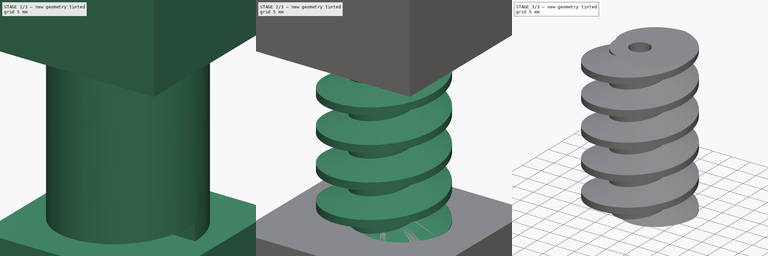
[diagram: build sequence overview — one tinted view per stage of 3, left to right]
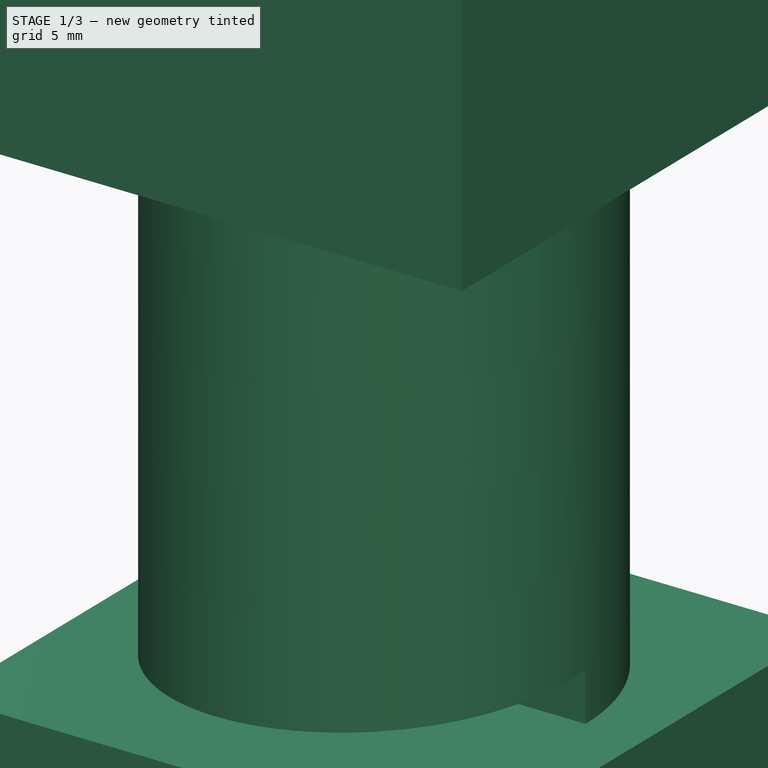
[diagram: stage 1 of 3 — iso view after this stage's code; geometry added in this stage tinted green]
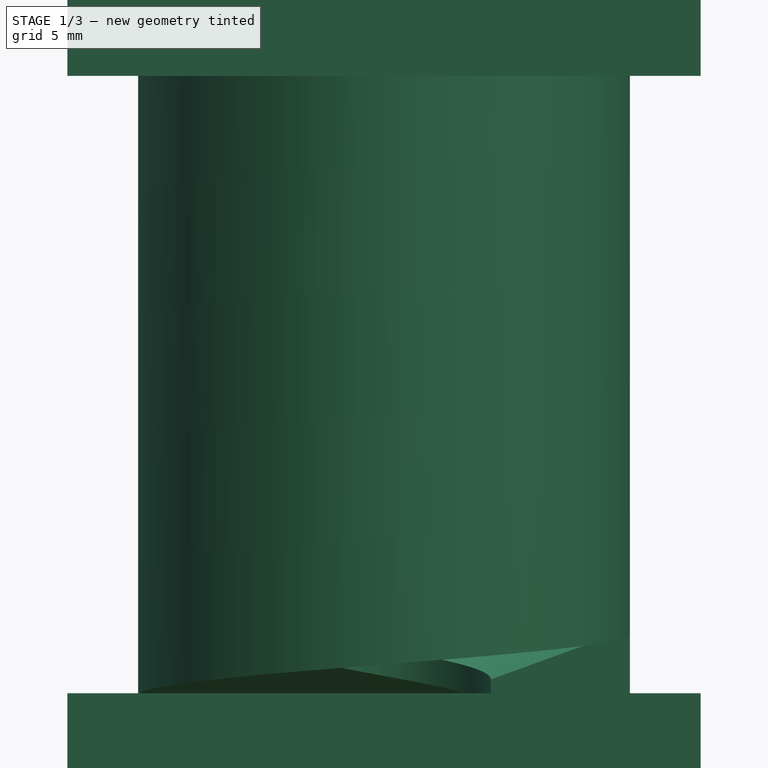
[diagram: stage 1 of 3 — front view after this stage's code; geometry added in this stage tinted green]
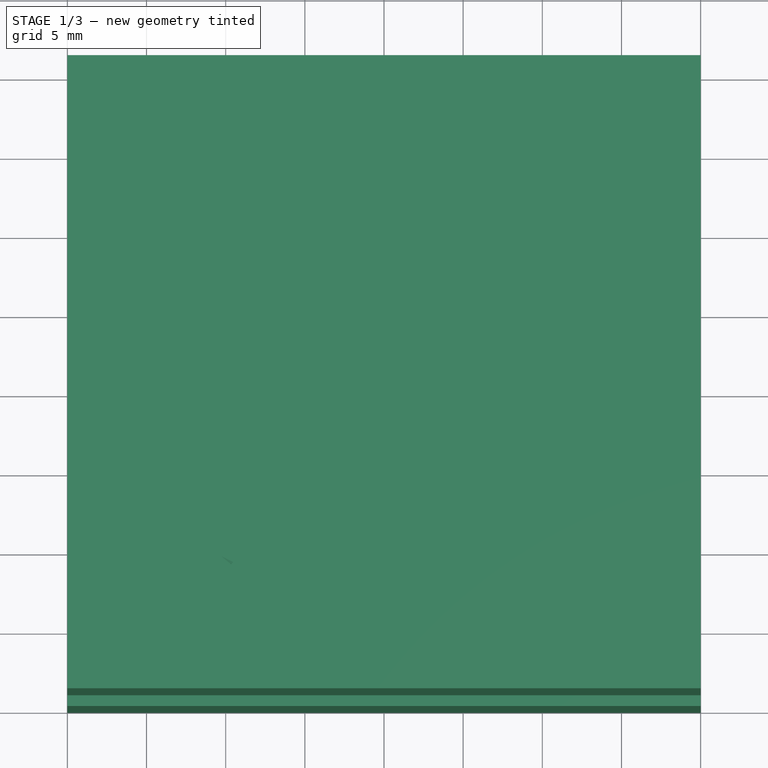
[diagram: stage 1 of 3 — top view after this stage's code; geometry added in this stage tinted green]
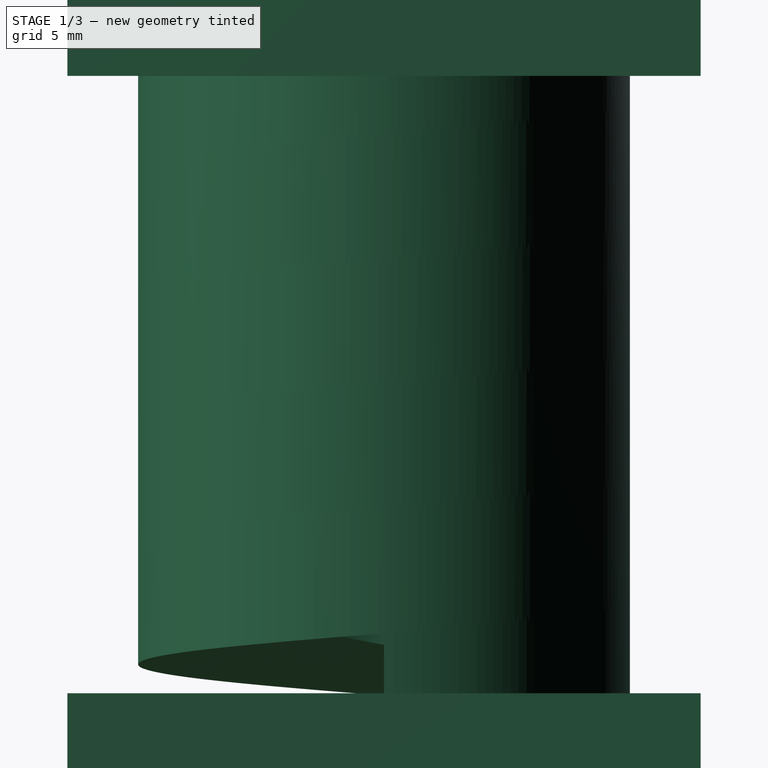
[diagram: stage 1 of 3 — right view after this stage's code; geometry added in this stage tinted green]
FCSTD DOCUMENT  (FreeCAD 0.14R$WCREV$)
Label: worm_gear
License: CC-BY 3.0
LicenseURL: http://creativecommons.org/licenses/by/3.0/
objects: Sketcher::SketchObject×4, PartDesign::Pad×2, Part::Cut×2, Part::Helix×1, Part::Sweep×1, PartDesign::Pocket×1
note: 14 computed .brp shape members not serialized (recipe doc carries the construction recipe); baked Part::Feature solids carry a one-line shape summary decoded from their .brp

FEATURE [Part::Helix] Helix  label="wormHelix"
  Angle = 0
  Height = 60
  LocalCoord = 0
  Pitch = 7.85
  Radius = 9.75
  Style = 1
FEATURE [Sketcher::SketchObject] Sketch001  label="wormCutterProfile"
  Placement = pos=(0,0,0) rot=(1,0,0;1.5708rad)
  sketch-geometry (6):
    g0: LineSegment [constr] StartX=12.25 StartY=2.87243 StartZ=0 EndX=12.25 EndY=-2.87243 EndZ=0
    g1: LineSegment StartX=6.75 StartY=-0.870589 StartZ=0 EndX=6.75 EndY=0.870589 EndZ=0
    g2: LineSegment [constr] StartX=9.75 StartY=1.9625 StartZ=0 EndX=9.75 EndY=-1.9625 EndZ=0
    g3: LineSegment StartX=6.75 StartY=0.870589 StartZ=0 EndX=15.5331 EndY=4.06739 EndZ=0
    g4: LineSegment StartX=6.75 StartY=-0.870589 StartZ=0 EndX=15.5331 EndY=-4.06739 EndZ=0
    g5: LineSegment StartX=15.5331 StartY=4.06739 StartZ=0 EndX=15.5331 EndY=-4.06739 EndZ=0
  constraints (17):
    c: Vertical(g2)
    c: DistanceX(g-1,g2) = 9.75
    c: Symmetric(g1,g1,g-1)
    c: Symmetric(g0,g0,g-1)
    c: DistanceX(g1,g2) = 3
    c: DistanceX(g2,g0) = 2.5
    c: Coincident(g3,g1)
    c: Coincident(g4,g1)
    c: PointOnObject(g0,g3)
    c: PointOnObject(g2,g3)
    c: PointOnObject(g2,g4)
    c: PointOnObject(g0,g4)
    c: Symmetric(g3,g4,g-1)
    c: Coincident(g5,g3)
    c: Coincident(g5,g4)
    c: Angle(g3,g-1) = 2.79253
    c: DistanceY(g2) = -3.925
FEATURE [Sketcher::SketchObject] Sketch002  label="heightCutter"
  Placement = pos=(0,0,0) rot=(-1,0,0;4.71239rad)
  sketch-geometry (8):
    g0: LineSegment StartX=-20 StartY=0 StartZ=0 EndX=20 EndY=0 EndZ=0
    g1: LineSegment StartX=20 StartY=0 StartZ=0 EndX=20 EndY=-25 EndZ=0
    g2: LineSegment StartX=20 StartY=-25 StartZ=0 EndX=-20 EndY=-25 EndZ=0
    g3: LineSegment StartX=-20 StartY=-25 StartZ=0 EndX=-20 EndY=0 EndZ=0
    g4: LineSegment StartX=-20 StartY=64 StartZ=0 EndX=20 EndY=64 EndZ=0
    g5: LineSegment StartX=20 StartY=64 StartZ=0 EndX=20 EndY=39 EndZ=0
    g6: LineSegment StartX=20 StartY=39 StartZ=0 EndX=-20 EndY=39 EndZ=0
    g7: LineSegment StartX=-20 StartY=39 StartZ=0 EndX=-20 EndY=64 EndZ=0
  constraints (24):
    c: Coincident(g0,g1)
    c: Coincident(g1,g2)
    c: Coincident(g2,g3)
    c: Coincident(g3,g0)
    c: Horizontal(g0)
    c: Horizontal(g2)
    c: Vertical(g1)
    c: Vertical(g3)
    c: PointOnObject(g0,g-1)
    c: Coincident(g4,g5)
    c: Coincident(g5,g6)
    c: Coincident(g6,g7)
    c: Coincident(g7,g4)
    c: Horizontal(g4)
    c: Horizontal(g6)
    c: Vertical(g5)
    c: Vertical(g7)
    c: DistanceY(g5,g0) = -39
    c: DistanceY(g1) = -25
    c: Equal(g5,g1)
    c: Symmetric(g0,g0,g-2)
    c: Symmetric(g4,g4,g-2)
    c: Equal(g4,g0)
    c: DistanceX(g2) = -40
FEATURE [Part::Sweep] Sweep
  Frenet = true
  Sections = -> [Sketch001]
  Solid = true
  Spine = -> Helix [Edge1]
  Transition = 1
FEATURE [PartDesign::Pad] Pad001  label="heightCuterPad"
  Length = 40
  Length2 = 10
  Midplane = true
  Placement = pos=(0,0,0) rot=(-1,0,0;4.71239rad)
  Sketch = -> Sketch002
  Type = 0
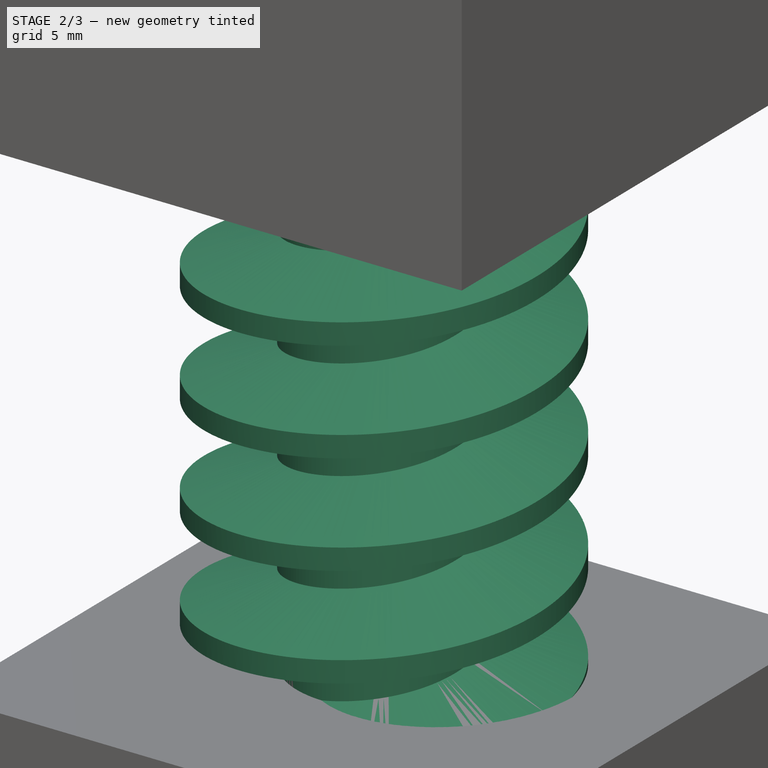
[diagram: stage 2 of 3 — iso view after this stage's code; geometry added in this stage tinted green]
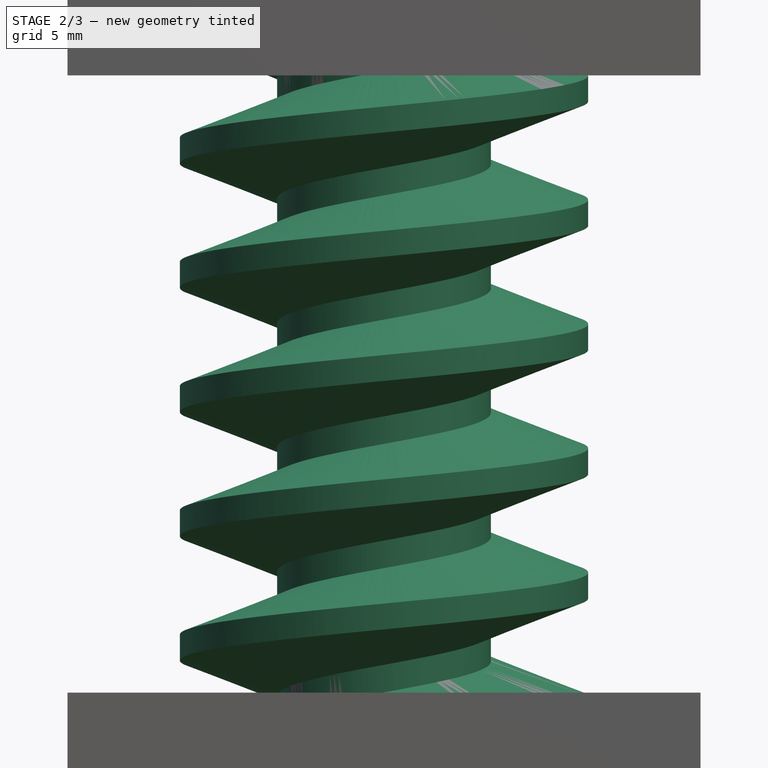
[diagram: stage 2 of 3 — front view after this stage's code; geometry added in this stage tinted green]
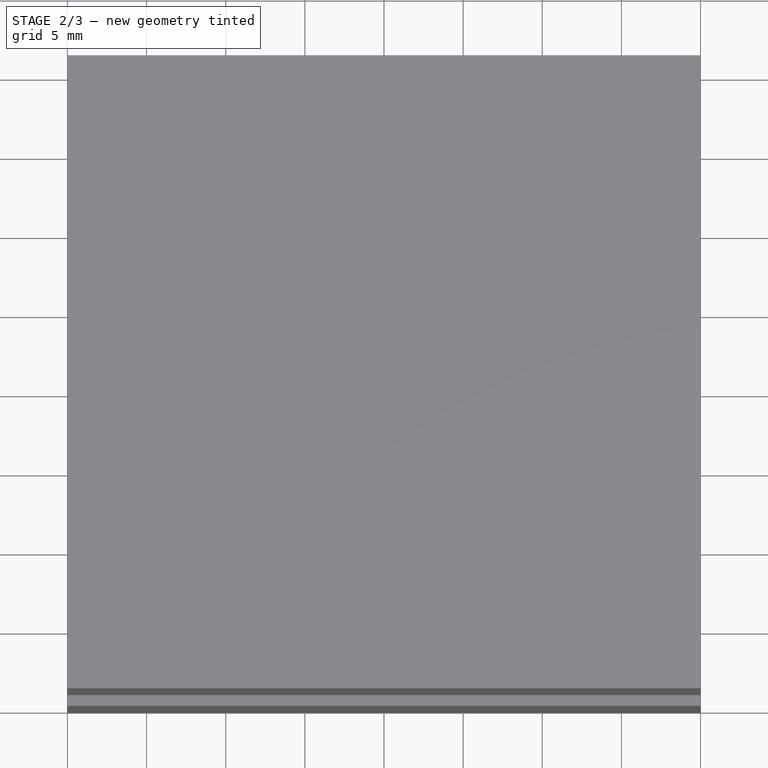
[diagram: stage 2 of 3 — top view after this stage's code; geometry added in this stage tinted green]
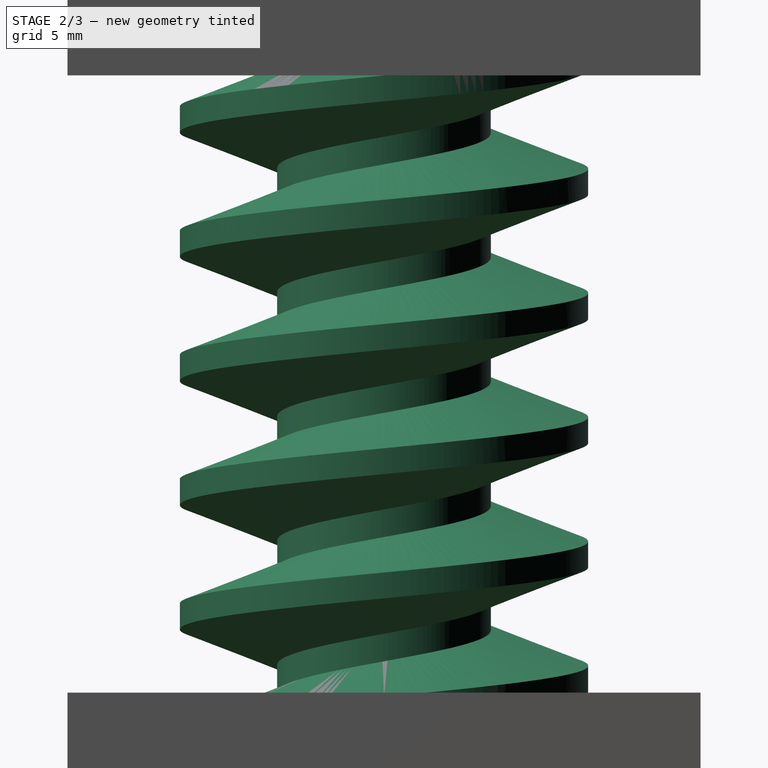
[diagram: stage 2 of 3 — right view after this stage's code; geometry added in this stage tinted green]
FEATURE [Sketcher::SketchObject] Sketch  label="wormBodyProfile"
  Placement = pos=(0,0,-5) rot=(0,0,1;0rad)
  sketch-geometry (2):
    g0: Circle CenterX=0 CenterY=0 CenterZ=0 NormalX=0 NormalY=0 NormalZ=1 Radius=12.9
    g1: Circle CenterX=0 CenterY=0 CenterZ=0 NormalX=0 NormalY=0 NormalZ=1 Radius=2.6
  constraints (4):
    c: Coincident(g0,g-1)
    c: Radius(g0) = 12.9
    c: Coincident(g1,g-1)
    c: Radius(g1) = 2.6
FEATURE [PartDesign::Pad] Pad  label="wormBody"
  Length = 70
  Length2 = 10
  Placement = pos=(0,0,-5) rot=(0,0,1;0rad)
  Sketch = -> Sketch
  Type = 0
FEATURE [Part::Cut] Cut  label="toothCut"
  Base = -> Pad
  Placement = pos=(0,0,-5) rot=(0,0,1;0rad)
  Tool = -> Sweep
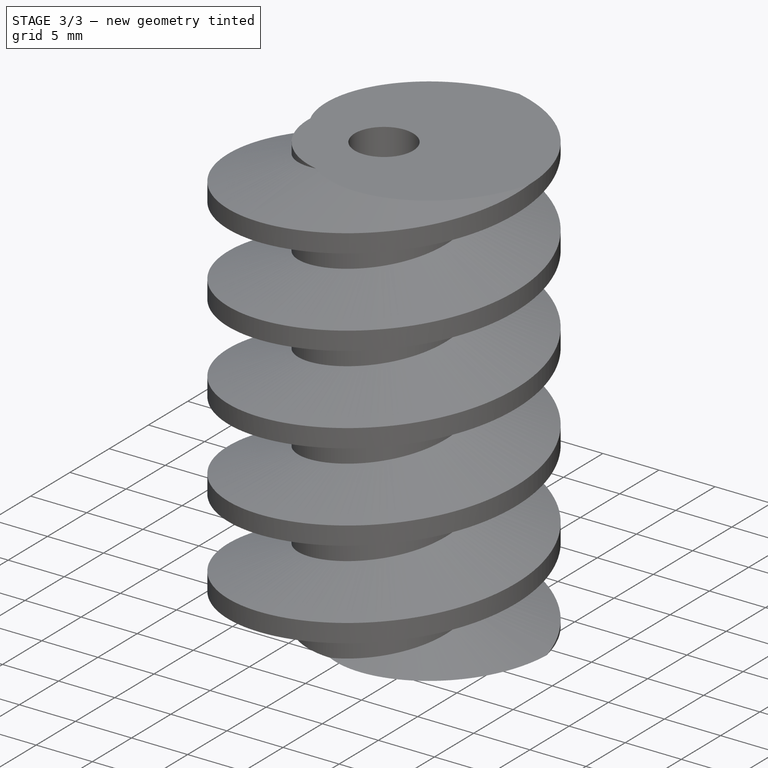
[diagram: stage 3 of 3 — iso view after this stage's code; geometry added in this stage tinted green]
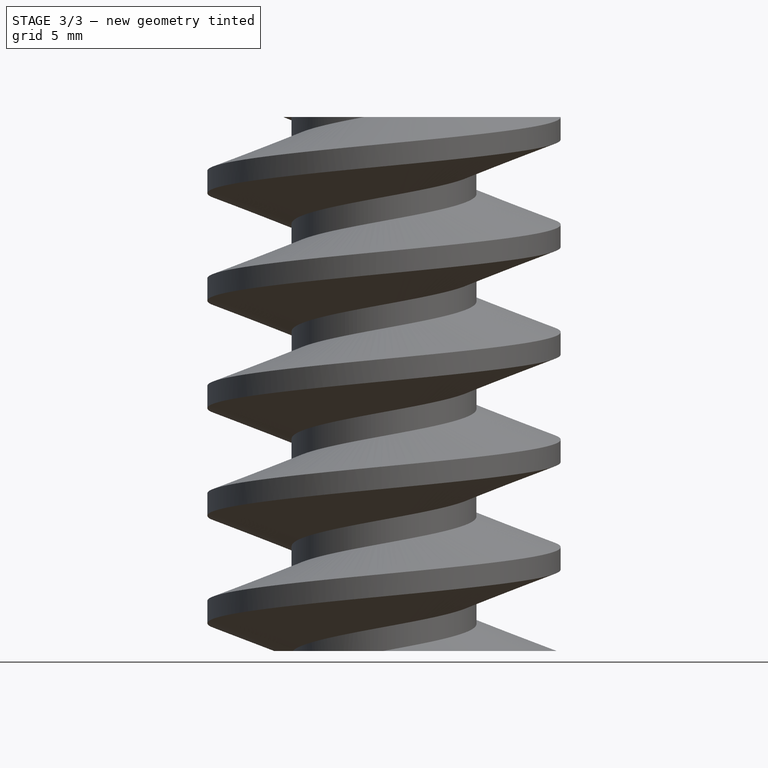
[diagram: stage 3 of 3 — front view after this stage's code; geometry added in this stage tinted green]
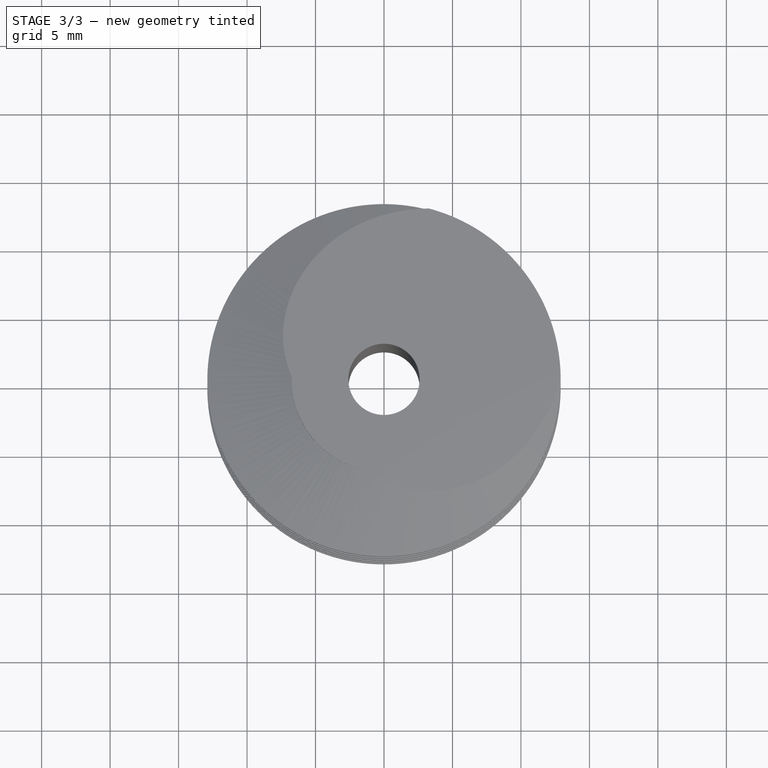
[diagram: stage 3 of 3 — top view after this stage's code; geometry added in this stage tinted green]
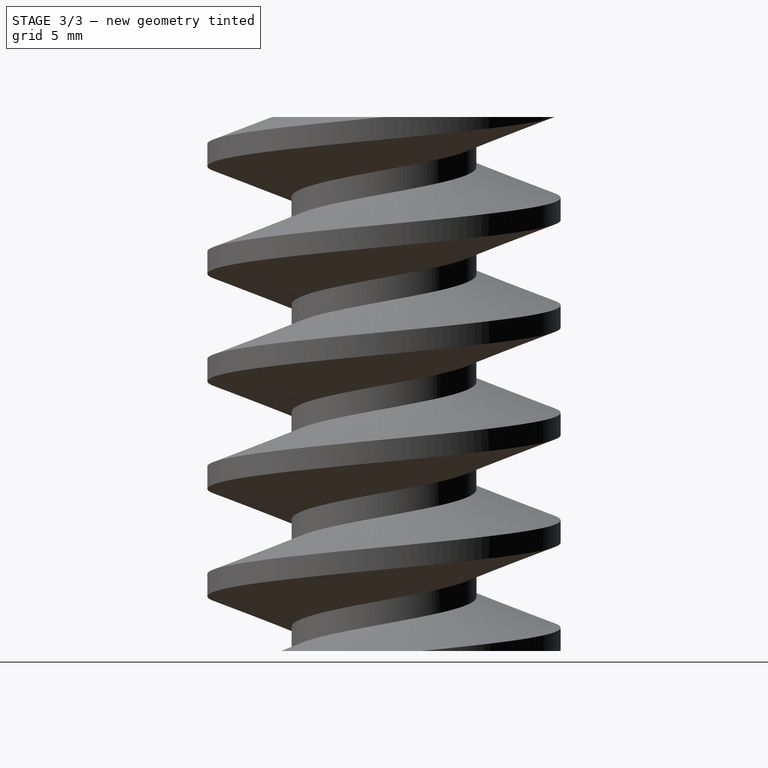
[diagram: stage 3 of 3 — right view after this stage's code; geometry added in this stage tinted green]
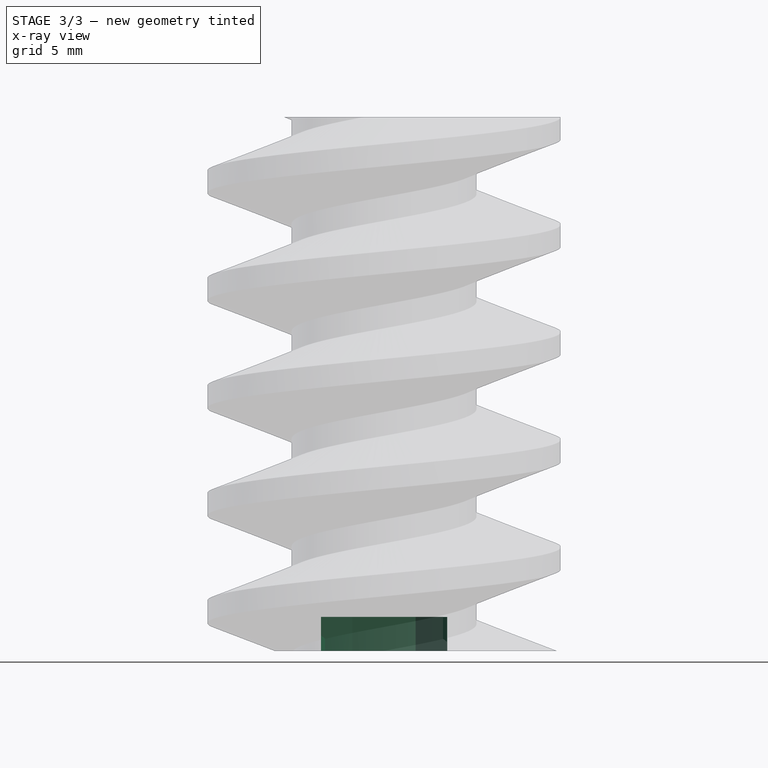
[diagram: stage 3 of 3 — x-ray composite at the front view; earlier geometry ghosted, this stage's added geometry solid]
FEATURE [Part::Cut] Cut001
  Base = -> Cut
  Tool = -> Pad001
FEATURE [Sketcher::SketchObject] Sketch003
  ExternalGeometry = -> [Cut001]
  Placement = pos=(0,0,0) rot=(1,0,0;3.14159rad)
  Support = -> Cut001 [Face5]
  sketch-geometry (7):
    g0: LineSegment StartX=-2.3094 StartY=4 StartZ=0 EndX=2.3094 EndY=4 EndZ=0
    g1: LineSegment StartX=2.3094 StartY=4 StartZ=0 EndX=4.6188 EndY=0 EndZ=0
    g2: LineSegment StartX=4.6188 StartY=0 StartZ=0 EndX=2.3094 EndY=-4 EndZ=0
    g3: LineSegment StartX=2.3094 StartY=-4 StartZ=0 EndX=-2.3094 EndY=-4 EndZ=0
    g4: LineSegment StartX=-2.3094 StartY=-4 StartZ=0 EndX=-4.6188 EndY=0 EndZ=0
    g5: LineSegment StartX=-4.6188 StartY=0 StartZ=0 EndX=-2.3094 EndY=4 EndZ=0
    g6: Circle [constr] CenterX=0 CenterY=0 CenterZ=0 NormalX=0 NormalY=0 NormalZ=1 Radius=4
  constraints (20):
    c: Horizontal(g0)
    c: Coincident(g0,g1)
    c: Coincident(g1,g2)
    c: Coincident(g2,g3)
    c: Coincident(g3,g4)
    c: Coincident(g4,g5)
    c: Coincident(g5,g0)
    c: Horizontal(g3)
    c: Equal(g5,g0)
    c: Equal(g0,g1)
    c: Equal(g1,g2)
    c: Equal(g2,g3)
    c: Equal(g3,g4)
    c: Coincident(g6,g-1)
    c: Tangent(g0,g6)
    c: Tangent(g1,g6)
    c: Tangent(g2,g6)
    c: Tangent(g6,g3)
    c: Tangent(g4,g6)
    c: Radius(g6) = 4
FEATURE [PartDesign::Pocket] Pocket
  Length = 2.5
  Sketch = -> Sketch003
  Type = 0
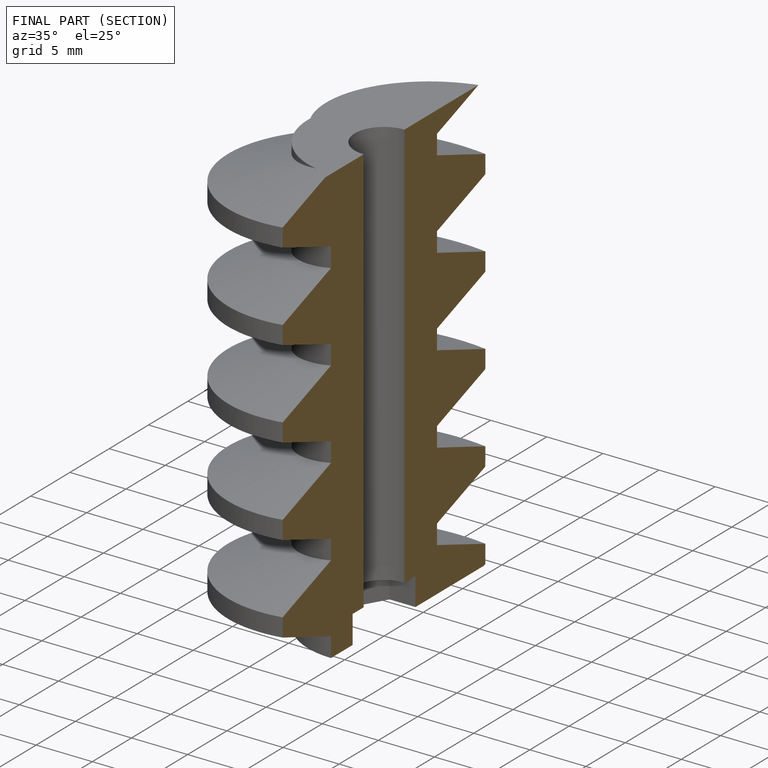
[diagram: finished part — half-section view (interior)]
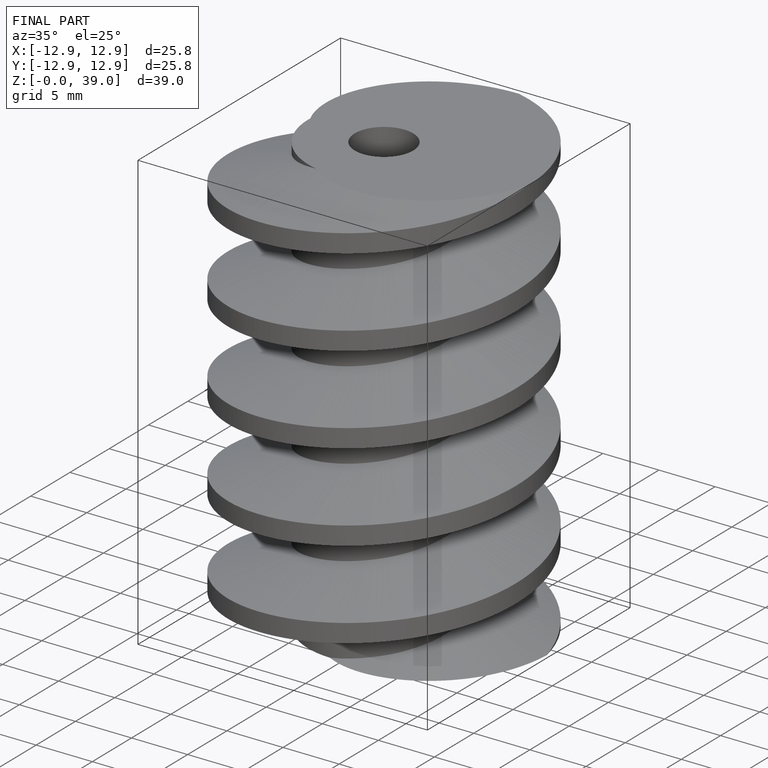
[diagram: finished part — iso view with bounding-box wireframe]
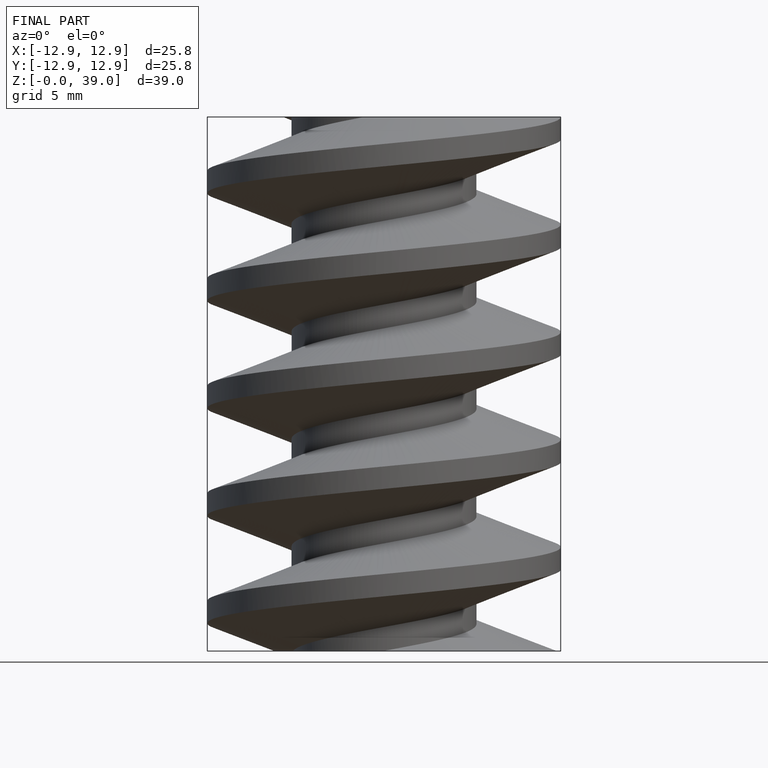
[diagram: finished part — front view with bounding-box wireframe]
